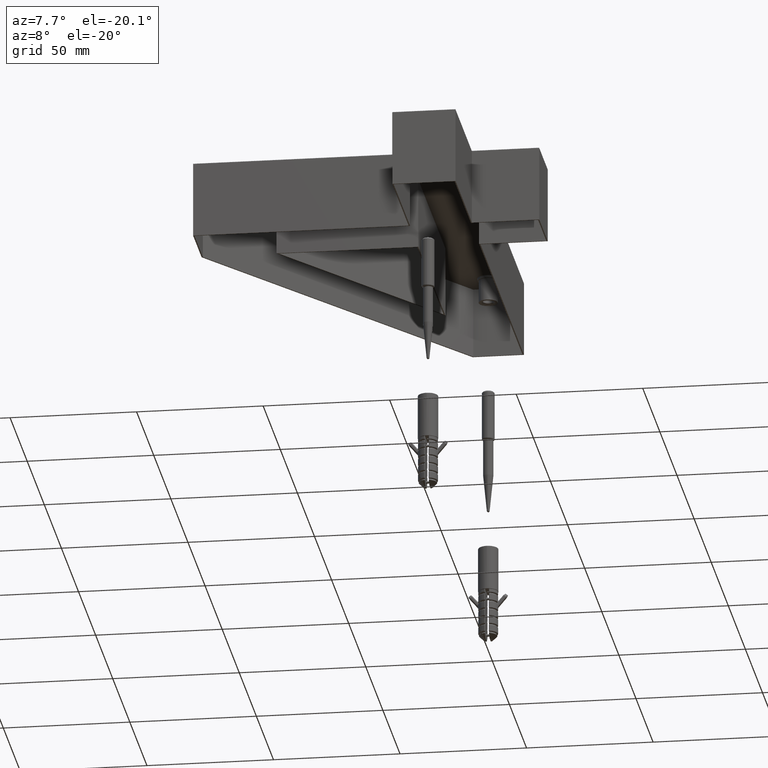
[diagram: clean part render]
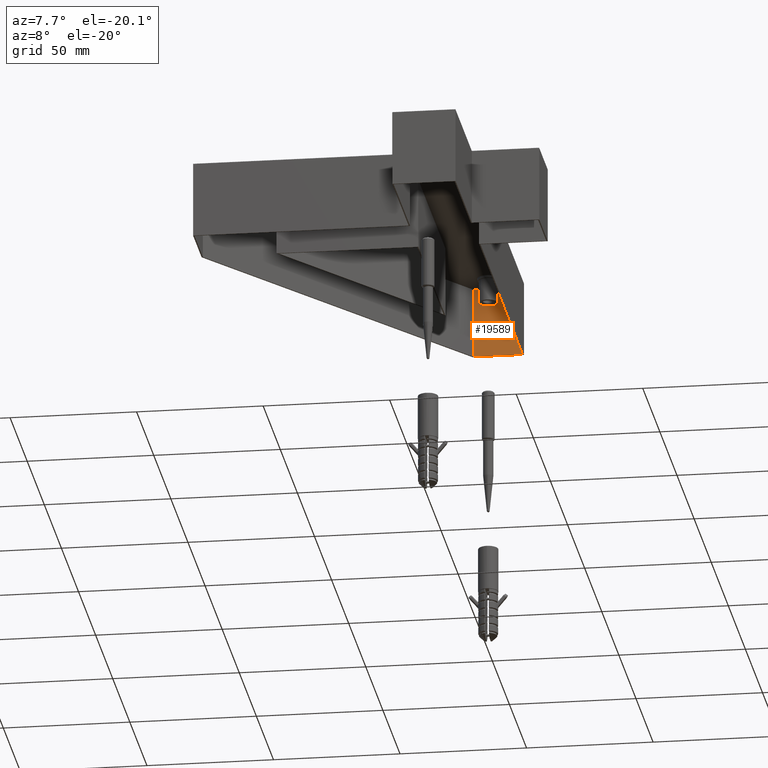
[diagram: same view with one face highlighted and labeled with its STEP entity id]
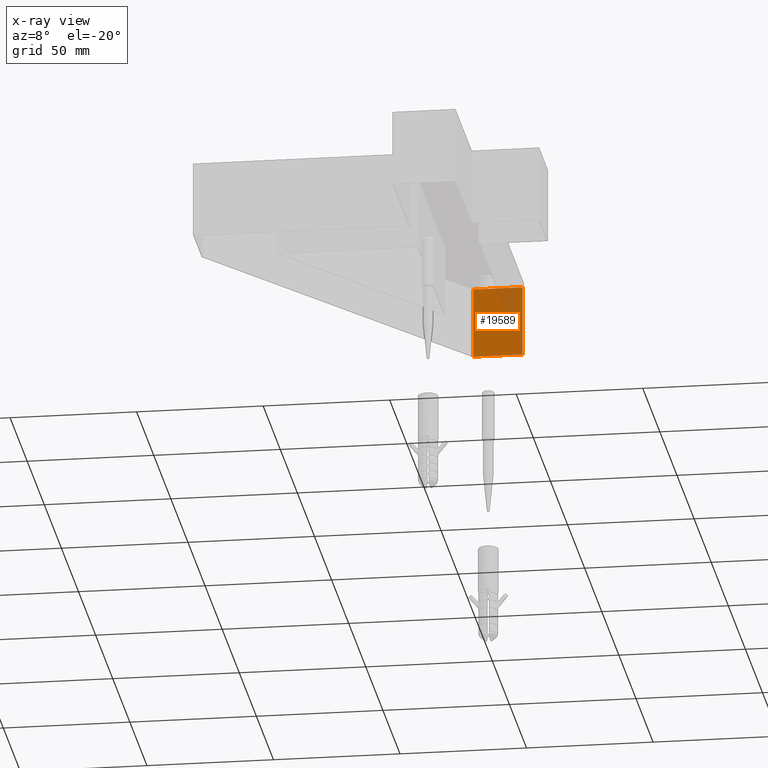
[diagram: x-ray of the same camera — body ghosted, the highlighted face saturated]
A machine part, auxiliary view. The second image highlights one B-rep face of the part: STEP entity #19589.
The next image is the same camera in x-ray: the body ghosted, the highlighted face saturated — about 14% of this face is hidden behind the body in this view.
In plain terms, the highlighted planar face has unit normal (0, -1, 0).
Its self-contained STEP definition (entity closure, byte-faithful):
#2019 = DIRECTION ( 'NONE',  ( -0.0000000000000000000, -0.0000000000000000000, 1.000000000000000000 ) ) ;
#2252 = EDGE_CURVE ( 'NONE', #6881, #18668, #2325, .T. ) ;
#2325 = LINE ( 'NONE', #11341, #17600 ) ;
#3070 = PLANE ( 'NONE',  #17476 ) ;
#3687 = DIRECTION ( 'NONE',  ( -0.0000000000000000000, -0.0000000000000000000, 1.000000000000000000 ) ) ;
#3948 = DIRECTION ( 'NONE',  ( 1.000000000000000000, 0.0000000000000000000, 0.0000000000000000000 ) ) ;
#4384 = CARTESIAN_POINT ( 'NONE',  ( 11.99999999999991700, 199.4999999999996900, -28.00000000000000000 ) ) ;
#5553 = CARTESIAN_POINT ( 'NONE',  ( 0.0000000000000000000, 199.4999999999996900, 0.0000000000000000000 ) ) ;
#6881 = VERTEX_POINT ( 'NONE', #25764 ) ;
#7223 = ORIENTED_EDGE ( 'NONE', *, *, #25019, .F. ) ;
#7815 = CARTESIAN_POINT ( 'NONE',  ( 11.99999999999991700, 199.4999999999996900, 0.0000000000000000000 ) ) ;
#8441 = ORIENTED_EDGE ( 'NONE', *, *, #2252, .T. ) ;
#8866 = FACE_OUTER_BOUND ( 'NONE', #25950, .T. ) ;
#9157 = LINE ( 'NONE', #21405, #24433 ) ;
#9955 = LINE ( 'NONE', #18214, #21935 ) ;
#10157 = ORIENTED_EDGE ( 'NONE', *, *, #18991, .F. ) ;
#10312 = VERTEX_POINT ( 'NONE', #20915 ) ;
#11341 = CARTESIAN_POINT ( 'NONE',  ( 0.0000000000000000000, 199.4999999999996900, -28.00000000000000000 ) ) ;
#11462 = DIRECTION ( 'NONE',  ( 0.0000000000000000000, -1.000000000000000000, 0.0000000000000000000 ) ) ;
#12102 = DIRECTION ( 'NONE',  ( 0.0000000000000000000, -0.0000000000000000000, -1.000000000000000000 ) ) ;
#15554 = LINE ( 'NONE', #5553, #22163 ) ;
#17476 = AXIS2_PLACEMENT_3D ( 'NONE', #24198, #11462, #12102 ) ;
#17600 = VECTOR ( 'NONE', #26069, 1000.000000000000000 ) ;
#18170 = EDGE_CURVE ( 'NONE', #18668, #18590, #9157, .T. ) ;
#18214 = CARTESIAN_POINT ( 'NONE',  ( -7.476506061091931200, 199.4999999999996900, -28.00000000000000000 ) ) ;
#18590 = VERTEX_POINT ( 'NONE', #7815 ) ;
#18668 = VERTEX_POINT ( 'NONE', #4384 ) ;
#18991 = EDGE_CURVE ( 'NONE', #6881, #10312, #9955, .T. ) ;
#19589 = ADVANCED_FACE ( 'NONE', ( #8866 ), #3070, .T. ) ;
#20915 = CARTESIAN_POINT ( 'NONE',  ( -7.476506061091931200, 199.4999999999996900, 0.0000000000000000000 ) ) ;
#21405 = CARTESIAN_POINT ( 'NONE',  ( 11.99999999999991700, 199.4999999999996900, -28.00000000000000000 ) ) ;
#21935 = VECTOR ( 'NONE', #3687, 1000.000000000000000 ) ;
#22163 = VECTOR ( 'NONE', #3948, 1000.000000000000000 ) ;
#23598 = ORIENTED_EDGE ( 'NONE', *, *, #18170, .T. ) ;
#24198 = CARTESIAN_POINT ( 'NONE',  ( 0.0000000000000000000, 199.4999999999996900, -28.00000000000000000 ) ) ;
#24433 = VECTOR ( 'NONE', #2019, 1000.000000000000000 ) ;
#25019 = EDGE_CURVE ( 'NONE', #10312, #18590, #15554, .T. ) ;
#25764 = CARTESIAN_POINT ( 'NONE',  ( -7.476506061091931200, 199.4999999999996900, -28.00000000000000000 ) ) ;
#25950 = EDGE_LOOP ( 'NONE', ( #7223, #10157, #8441, #23598 ) ) ;
#26069 = DIRECTION ( 'NONE',  ( 1.000000000000000000, 0.0000000000000000000, 0.0000000000000000000 ) ) ;